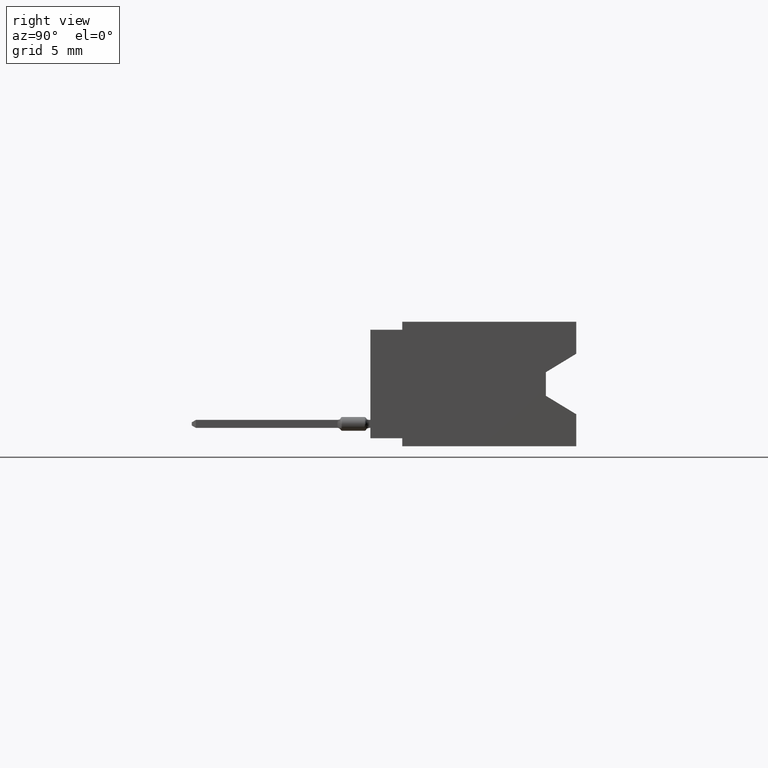
[diagram: clean part render]
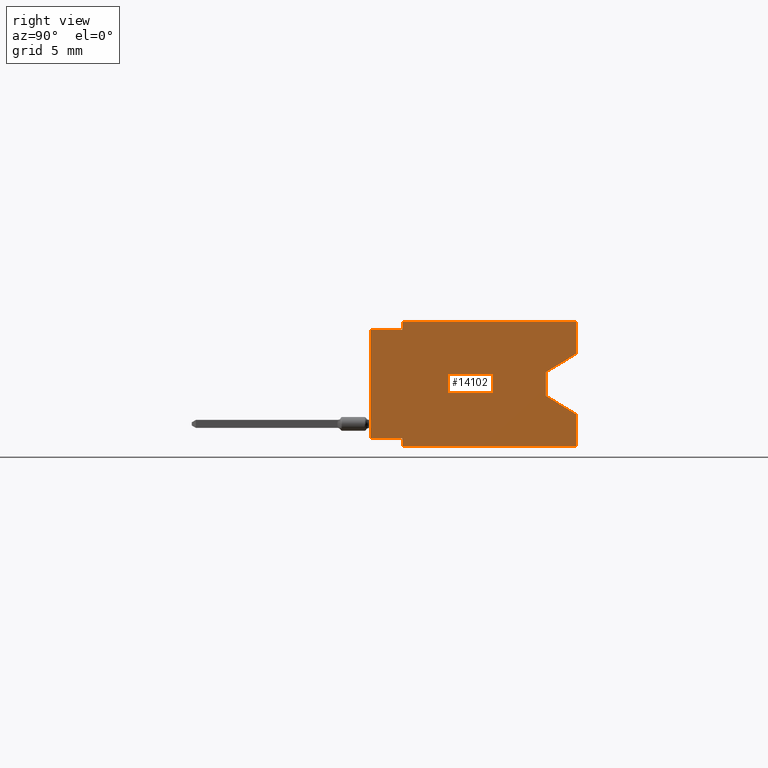
[diagram: same view with one face highlighted and labeled with its STEP entity id]
A machine part, right view. The second image highlights one B-rep face of the part: STEP entity #14102.
In plain terms, the highlighted planar face has unit normal (-1, 0, 0).
Its self-contained STEP definition (entity closure, byte-faithful):
#608 = CARTESIAN_POINT ( 'NONE',  ( 1.909999999999999920, 0.6449999999999999067, 0.0000000000000000000 ) ) ;
#1038 = LINE ( 'NONE', #6429, #19648 ) ;
#1346 = DIRECTION ( 'NONE',  ( 0.0000000000000000000, 1.000000000000000000, 0.0000000000000000000 ) ) ;
#2017 = EDGE_CURVE ( 'NONE', #23355, #13522, #15866, .T. ) ;
#2198 = EDGE_CURVE ( 'NONE', #12854, #16273, #21998, .T. ) ;
#2260 = CARTESIAN_POINT ( 'NONE',  ( 1.909999999999999920, 0.5499999999999999334, -0.1580000000000000016 ) ) ;
#2345 = VECTOR ( 'NONE', #22476, 39.37007874015748143 ) ;
#2350 = CARTESIAN_POINT ( 'NONE',  ( 1.909999999999999920, 0.0000000000000000000, -0.02500000000000000486 ) ) ;
#2572 = VECTOR ( 'NONE', #5952, 39.37007874015748854 ) ;
#2839 = EDGE_CURVE ( 'NONE', #11433, #18374, #7875, .T. ) ;
#3321 = CARTESIAN_POINT ( 'NONE',  ( 1.909999999999999920, 0.6449999999999999067, -0.3900000000000000133 ) ) ;
#3888 = CARTESIAN_POINT ( 'NONE',  ( 1.909999999999999920, 0.0000000000000000000, 0.0000000000000000000 ) ) ;
#4030 = VERTEX_POINT ( 'NONE', #17619 ) ;
#4220 = ORIENTED_EDGE ( 'NONE', *, *, #2839, .T. ) ;
#4298 = LINE ( 'NONE', #2260, #2345 ) ;
#4436 = DIRECTION ( 'NONE',  ( -0.0000000000000000000, -1.000000000000000000, -0.0000000000000000000 ) ) ;
#4461 = CARTESIAN_POINT ( 'NONE',  ( 1.909999999999999920, 0.6449999999999999067, -0.2897499999999999520 ) ) ;
#4786 = EDGE_CURVE ( 'NONE', #4030, #5029, #6947, .T. ) ;
#4920 = VECTOR ( 'NONE', #4436, 39.37007874015748143 ) ;
#5029 = VERTEX_POINT ( 'NONE', #7668 ) ;
#5136 = CARTESIAN_POINT ( 'NONE',  ( 1.909999999999999920, 0.6449999999999999067, 0.0000000000000000000 ) ) ;
#5271 = EDGE_CURVE ( 'NONE', #13522, #5768, #18354, .T. ) ;
#5309 = CARTESIAN_POINT ( 'NONE',  ( 1.909999999999999920, 0.0000000000000000000, -0.3649999999999999911 ) ) ;
#5768 = VERTEX_POINT ( 'NONE', #5914 ) ;
#5773 = ORIENTED_EDGE ( 'NONE', *, *, #21202, .T. ) ;
#5914 = CARTESIAN_POINT ( 'NONE',  ( 1.909999999999999920, 0.1000000000000000056, -0.3900000000000000133 ) ) ;
#5952 = DIRECTION ( 'NONE',  ( 0.0000000000000000000, -0.8545023705661021207, -0.5194474936862355507 ) ) ;
#6211 = EDGE_CURVE ( 'NONE', #7659, #12676, #4298, .T. ) ;
#6429 = CARTESIAN_POINT ( 'NONE',  ( 1.909999999999999920, 0.1000000000000000056, -0.3900000000000000133 ) ) ;
#6590 = DIRECTION ( 'NONE',  ( 0.0000000000000000000, 0.0000000000000000000, -1.000000000000000000 ) ) ;
#6947 = LINE ( 'NONE', #5136, #21269 ) ;
#7184 = CARTESIAN_POINT ( 'NONE',  ( 1.909999999999999920, 0.1000000000000000056, 0.0000000000000000000 ) ) ;
#7322 = CARTESIAN_POINT ( 'NONE',  ( 1.909999999999999920, 0.5499999999999999334, -0.1580000000000000016 ) ) ;
#7634 = DIRECTION ( 'NONE',  ( -1.000000000000000000, 0.0000000000000000000, 0.0000000000000000000 ) ) ;
#7659 = VERTEX_POINT ( 'NONE', #7322 ) ;
#7668 = CARTESIAN_POINT ( 'NONE',  ( 1.909999999999999920, 0.6449999999999999067, -0.1002500000000000058 ) ) ;
#7708 = VECTOR ( 'NONE', #12483, 39.37007874015748143 ) ;
#7772 = LINE ( 'NONE', #12643, #2572 ) ;
#7874 = FACE_OUTER_BOUND ( 'NONE', #11061, .T. ) ;
#7875 = LINE ( 'NONE', #22660, #8388 ) ;
#7897 = CARTESIAN_POINT ( 'NONE',  ( 1.909999999999999920, 0.5499999999999999334, -0.2320000000000000395 ) ) ;
#8059 = ORIENTED_EDGE ( 'NONE', *, *, #2198, .T. ) ;
#8215 = EDGE_CURVE ( 'NONE', #12859, #11433, #22178, .T. ) ;
#8388 = VECTOR ( 'NONE', #1346, 39.37007874015748143 ) ;
#9123 = DIRECTION ( 'NONE',  ( 0.0000000000000000000, 0.0000000000000000000, -1.000000000000000000 ) ) ;
#9590 = DIRECTION ( 'NONE',  ( 0.0000000000000000000, 0.8545023705661023428, -0.5194474936862353287 ) ) ;
#10024 = ORIENTED_EDGE ( 'NONE', *, *, #15107, .T. ) ;
#10093 = CARTESIAN_POINT ( 'NONE',  ( 1.909999999999999920, 0.6449999999999999067, 0.0000000000000000000 ) ) ;
#10221 = CARTESIAN_POINT ( 'NONE',  ( 1.909999999999999920, 0.1000000000000000056, -0.3649999999999999911 ) ) ;
#10511 = VECTOR ( 'NONE', #6590, 39.37007874015748143 ) ;
#10657 = EDGE_CURVE ( 'NONE', #12676, #23355, #11284, .T. ) ;
#10819 = DIRECTION ( 'NONE',  ( -0.0000000000000000000, -1.000000000000000000, -0.0000000000000000000 ) ) ;
#11061 = EDGE_LOOP ( 'NONE', ( #22500, #18690, #10024, #8059, #5773, #20366, #4220, #19952, #20364, #22687, #19912, #14015 ) ) ;
#11243 = DIRECTION ( 'NONE',  ( 0.0000000000000000000, 0.0000000000000000000, -1.000000000000000000 ) ) ;
#11284 = LINE ( 'NONE', #7897, #12098 ) ;
#11433 = VERTEX_POINT ( 'NONE', #5309 ) ;
#11495 = PLANE ( 'NONE',  #21046 ) ;
#12098 = VECTOR ( 'NONE', #9590, 39.37007874015748854 ) ;
#12483 = DIRECTION ( 'NONE',  ( -0.0000000000000000000, -1.000000000000000000, -0.0000000000000000000 ) ) ;
#12643 = CARTESIAN_POINT ( 'NONE',  ( 1.909999999999999920, 0.6449999999999999067, -0.1002500000000000058 ) ) ;
#12676 = VERTEX_POINT ( 'NONE', #21370 ) ;
#12682 = DIRECTION ( 'NONE',  ( -0.0000000000000000000, -0.0000000000000000000, -1.000000000000000000 ) ) ;
#12854 = VERTEX_POINT ( 'NONE', #14628 ) ;
#12859 = VERTEX_POINT ( 'NONE', #22309 ) ;
#12975 = VECTOR ( 'NONE', #10819, 39.37007874015748143 ) ;
#13522 = VERTEX_POINT ( 'NONE', #18920 ) ;
#13957 = LINE ( 'NONE', #608, #4920 ) ;
#14015 = ORIENTED_EDGE ( 'NONE', *, *, #6211, .F. ) ;
#14102 = ADVANCED_FACE ( 'NONE', ( #7874 ), #11495, .F. ) ;
#14307 = DIRECTION ( 'NONE',  ( 0.0000000000000000000, 0.0000000000000000000, -1.000000000000000000 ) ) ;
#14628 = CARTESIAN_POINT ( 'NONE',  ( 1.909999999999999920, 0.1000000000000000056, 0.0000000000000000000 ) ) ;
#15107 = EDGE_CURVE ( 'NONE', #4030, #12854, #13957, .T. ) ;
#15866 = LINE ( 'NONE', #10093, #10511 ) ;
#16273 = VERTEX_POINT ( 'NONE', #22795 ) ;
#16901 = CARTESIAN_POINT ( 'NONE',  ( 1.909999999999999920, 0.6449999999999999067, 0.0000000000000000000 ) ) ;
#17424 = VECTOR ( 'NONE', #11243, 39.37007874015748143 ) ;
#17619 = CARTESIAN_POINT ( 'NONE',  ( 1.909999999999999920, 0.6449999999999999067, 0.0000000000000000000 ) ) ;
#18354 = LINE ( 'NONE', #3321, #7708 ) ;
#18374 = VERTEX_POINT ( 'NONE', #10221 ) ;
#18690 = ORIENTED_EDGE ( 'NONE', *, *, #4786, .F. ) ;
#18820 = DIRECTION ( 'NONE',  ( 0.0000000000000000000, 0.0000000000000000000, 1.000000000000000000 ) ) ;
#18920 = CARTESIAN_POINT ( 'NONE',  ( 1.909999999999999920, 0.6449999999999999067, -0.3900000000000000133 ) ) ;
#19587 = VECTOR ( 'NONE', #9123, 39.37007874015748143 ) ;
#19648 = VECTOR ( 'NONE', #12682, 39.37007874015748143 ) ;
#19912 = ORIENTED_EDGE ( 'NONE', *, *, #10657, .F. ) ;
#19952 = ORIENTED_EDGE ( 'NONE', *, *, #23122, .T. ) ;
#20097 = LINE ( 'NONE', #2350, #12975 ) ;
#20364 = ORIENTED_EDGE ( 'NONE', *, *, #5271, .F. ) ;
#20366 = ORIENTED_EDGE ( 'NONE', *, *, #8215, .T. ) ;
#21046 = AXIS2_PLACEMENT_3D ( 'NONE', #16901, #7634, #18820 ) ;
#21202 = EDGE_CURVE ( 'NONE', #16273, #12859, #20097, .T. ) ;
#21225 = EDGE_CURVE ( 'NONE', #5029, #7659, #7772, .T. ) ;
#21269 = VECTOR ( 'NONE', #14307, 39.37007874015748143 ) ;
#21370 = CARTESIAN_POINT ( 'NONE',  ( 1.909999999999999920, 0.5499999999999999334, -0.2320000000000000395 ) ) ;
#21998 = LINE ( 'NONE', #7184, #19587 ) ;
#22178 = LINE ( 'NONE', #3888, #17424 ) ;
#22309 = CARTESIAN_POINT ( 'NONE',  ( 1.909999999999999920, 0.0000000000000000000, -0.02500000000000000486 ) ) ;
#22476 = DIRECTION ( 'NONE',  ( 0.0000000000000000000, 0.0000000000000000000, -1.000000000000000000 ) ) ;
#22500 = ORIENTED_EDGE ( 'NONE', *, *, #21225, .F. ) ;
#22660 = CARTESIAN_POINT ( 'NONE',  ( 1.909999999999999920, 0.0000000000000000000, -0.3649999999999999911 ) ) ;
#22687 = ORIENTED_EDGE ( 'NONE', *, *, #2017, .F. ) ;
#22795 = CARTESIAN_POINT ( 'NONE',  ( 1.909999999999999920, 0.1000000000000000056, -0.02500000000000000486 ) ) ;
#23122 = EDGE_CURVE ( 'NONE', #18374, #5768, #1038, .T. ) ;
#23355 = VERTEX_POINT ( 'NONE', #4461 ) ;